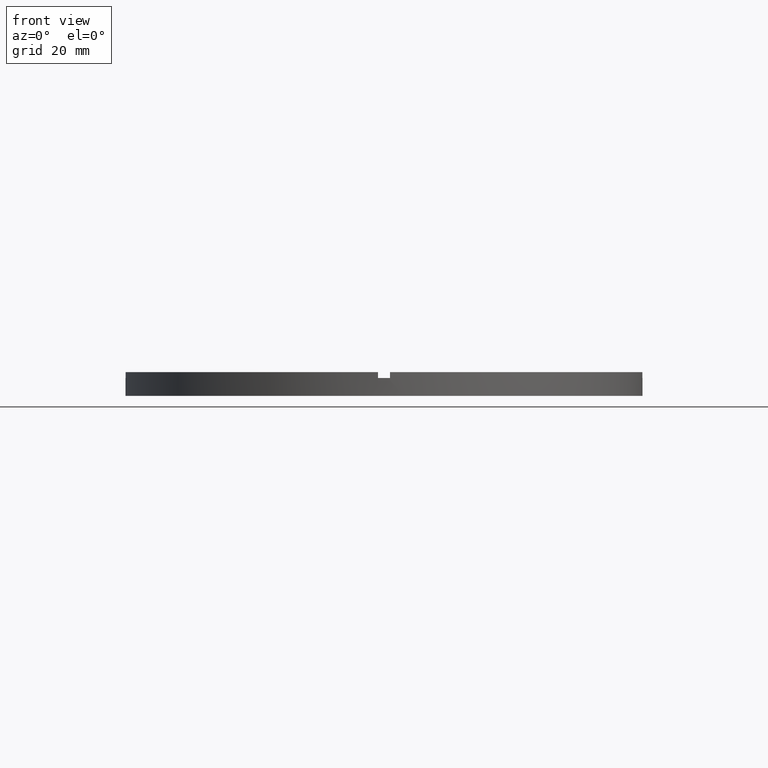
[diagram: clean part render]
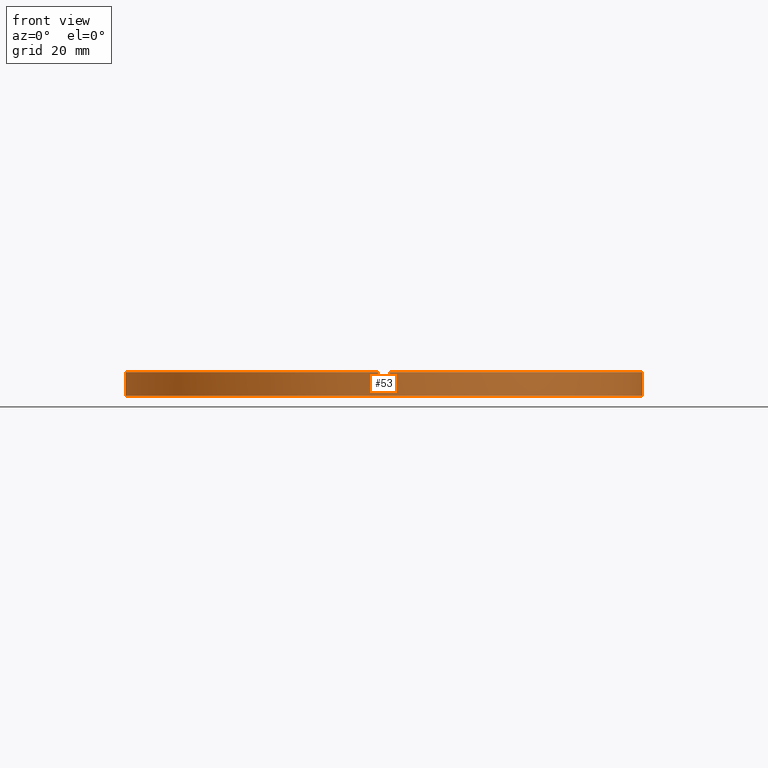
[diagram: same view with one face highlighted and labeled with its STEP entity id]
A machine part, front view. The second image highlights one B-rep face of the part: STEP entity #53.
In plain terms, the highlighted cylindrical surface (partial cylindrical patch) has radius 43.5 mm, axis along (-0, -0, -1).
Its self-contained STEP definition (entity closure, byte-faithful):
#25 = EDGE_CURVE ( 'NONE', #331, #570, #468, .T. ) ;
#26 = CARTESIAN_POINT ( 'NONE',  ( 43.48850422812905947, -1.000000000000156319, 4.000000000000000000 ) ) ;
#28 = LINE ( 'NONE', #451, #541 ) ;
#40 = ORIENTED_EDGE ( 'NONE', *, *, #159, .T. ) ;
#51 = LINE ( 'NONE', #149, #571 ) ;
#53 = ADVANCED_FACE ( 'NONE', ( #198 ), #552, .T. ) ;
#54 = CIRCLE ( 'NONE', #364, 43.50000000000000000 ) ;
#55 = LINE ( 'NONE', #407, #78 ) ;
#60 = LINE ( 'NONE', #462, #598 ) ;
#64 = CARTESIAN_POINT ( 'NONE',  ( -43.50000000000000000, 0.000000000000000000, 0.000000000000000000 ) ) ;
#78 = VECTOR ( 'NONE', #302, 1000.000000000000000 ) ;
#81 = VECTOR ( 'NONE', #674, 1000.000000000000000 ) ;
#83 = LINE ( 'NONE', #26, #81 ) ;
#93 = DIRECTION ( 'NONE',  ( 1.000000000000000000, 0.000000000000000000, 0.000000000000000000 ) ) ;
#108 = CARTESIAN_POINT ( 'NONE',  ( -43.48850422812906658, -1.000000000000029532, 3.000000000000000000 ) ) ;
#119 = EDGE_CURVE ( 'NONE', #681, #736, #51, .T. ) ;
#123 = EDGE_CURVE ( 'NONE', #752, #420, #54, .T. ) ;
#134 = EDGE_CURVE ( 'NONE', #752, #194, #28, .T. ) ;
#149 = CARTESIAN_POINT ( 'NONE',  ( 43.50000000000000000, 5.327213576290986044E-15, 4.000000000000000000 ) ) ;
#150 = CARTESIAN_POINT ( 'NONE',  ( 43.50000000000000000, 5.327213576290986044E-15, 3.000000000000000000 ) ) ;
#157 = VERTEX_POINT ( 'NONE', #411 ) ;
#159 = EDGE_CURVE ( 'NONE', #331, #291, #60, .T. ) ;
#164 = AXIS2_PLACEMENT_3D ( 'NONE', #422, #587, #683 ) ;
#169 = EDGE_CURVE ( 'NONE', #695, #420, #55, .T. ) ;
#176 = ORIENTED_EDGE ( 'NONE', *, *, #123, .F. ) ;
#182 = CIRCLE ( 'NONE', #551, 43.50000000000000000 ) ;
#190 = CARTESIAN_POINT ( 'NONE',  ( -1.000000000000158318, -43.48850422812905947, 3.000000000000000000 ) ) ;
#194 = VERTEX_POINT ( 'NONE', #108 ) ;
#198 = FACE_OUTER_BOUND ( 'NONE', #503, .T. ) ;
#214 = CARTESIAN_POINT ( 'NONE',  ( -43.50000000000000000, 0.000000000000000000, 4.000000000000000000 ) ) ;
#221 = CARTESIAN_POINT ( 'NONE',  ( 0.000000000000000000, 0.000000000000000000, 3.000000000000000000 ) ) ;
#225 = VERTEX_POINT ( 'NONE', #432 ) ;
#245 = ORIENTED_EDGE ( 'NONE', *, *, #574, .T. ) ;
#284 = DIRECTION ( 'NONE',  ( -0.000000000000000000, -0.000000000000000000, -1.000000000000000000 ) ) ;
#287 = CARTESIAN_POINT ( 'NONE',  ( -43.48850422812906658, -1.000000000000029532, 4.000000000000000000 ) ) ;
#291 = VERTEX_POINT ( 'NONE', #322 ) ;
#295 = ORIENTED_EDGE ( 'NONE', *, *, #701, .F. ) ;
#298 = CIRCLE ( 'NONE', #488, 43.50000000000000000 ) ;
#302 = DIRECTION ( 'NONE',  ( 0.000000000000000000, 0.000000000000000000, 1.000000000000000000 ) ) ;
#322 = CARTESIAN_POINT ( 'NONE',  ( 0.9999999999998416822, -43.48850422812906658, 3.000000000000000000 ) ) ;
#331 = VERTEX_POINT ( 'NONE', #718 ) ;
#348 = EDGE_CURVE ( 'NONE', #157, #501, #716, .T. ) ;
#364 = AXIS2_PLACEMENT_3D ( 'NONE', #709, #645, #93 ) ;
#375 = EDGE_CURVE ( 'NONE', #695, #291, #182, .T. ) ;
#389 = CARTESIAN_POINT ( 'NONE',  ( 0.000000000000000000, 0.000000000000000000, 3.000000000000000000 ) ) ;
#390 = DIRECTION ( 'NONE',  ( 0.000000000000000000, 0.000000000000000000, 1.000000000000000000 ) ) ;
#402 = DIRECTION ( 'NONE',  ( 1.000000000000000000, 0.000000000000000000, 0.000000000000000000 ) ) ;
#403 = DIRECTION ( 'NONE',  ( 1.000000000000000000, 0.000000000000000000, 0.000000000000000000 ) ) ;
#407 = CARTESIAN_POINT ( 'NONE',  ( -1.000000000000158318, -43.48850422812905947, 4.000000000000000000 ) ) ;
#411 = CARTESIAN_POINT ( 'NONE',  ( -43.50000000000000000, 0.000000000000000000, 3.000000000000000000 ) ) ;
#419 = EDGE_CURVE ( 'NONE', #225, #681, #298, .T. ) ;
#420 = VERTEX_POINT ( 'NONE', #652 ) ;
#422 = CARTESIAN_POINT ( 'NONE',  ( 0.000000000000000000, 0.000000000000000000, 4.000000000000000000 ) ) ;
#427 = ORIENTED_EDGE ( 'NONE', *, *, #375, .F. ) ;
#429 = DIRECTION ( 'NONE',  ( 1.000000000000000000, 0.000000000000000000, 0.000000000000000000 ) ) ;
#430 = ORIENTED_EDGE ( 'NONE', *, *, #25, .F. ) ;
#432 = CARTESIAN_POINT ( 'NONE',  ( 43.48850422812905947, -1.000000000000156319, 3.000000000000000000 ) ) ;
#447 = AXIS2_PLACEMENT_3D ( 'NONE', #741, #390, #429 ) ;
#450 = CARTESIAN_POINT ( 'NONE',  ( 0.000000000000000000, 0.000000000000000000, 3.000000000000000000 ) ) ;
#451 = CARTESIAN_POINT ( 'NONE',  ( -43.48850422812906658, -1.000000000000029532, 4.000000000000000000 ) ) ;
#457 = VECTOR ( 'NONE', #284, 1000.000000000000000 ) ;
#462 = CARTESIAN_POINT ( 'NONE',  ( 0.9999999999998416822, -43.48850422812906658, 4.000000000000000000 ) ) ;
#468 = CIRCLE ( 'NONE', #485, 43.50000000000000000 ) ;
#469 = ORIENTED_EDGE ( 'NONE', *, *, #348, .T. ) ;
#481 = ORIENTED_EDGE ( 'NONE', *, *, #169, .T. ) ;
#485 = AXIS2_PLACEMENT_3D ( 'NONE', #734, #597, #639 ) ;
#488 = AXIS2_PLACEMENT_3D ( 'NONE', #450, #658, #403 ) ;
#501 = VERTEX_POINT ( 'NONE', #64 ) ;
#503 = EDGE_LOOP ( 'NONE', ( #717, #763, #539, #430, #40, #427, #481, #176, #711, #295, #469, #245 ) ) ;
#530 = DIRECTION ( 'NONE',  ( -0.000000000000000000, -0.000000000000000000, -1.000000000000000000 ) ) ;
#539 = ORIENTED_EDGE ( 'NONE', *, *, #654, .T. ) ;
#541 = VECTOR ( 'NONE', #772, 1000.000000000000000 ) ;
#545 = CIRCLE ( 'NONE', #447, 43.50000000000000000 ) ;
#551 = AXIS2_PLACEMENT_3D ( 'NONE', #221, #627, #715 ) ;
#552 = CYLINDRICAL_SURFACE ( 'NONE', #164, 43.50000000000000000 ) ;
#570 = VERTEX_POINT ( 'NONE', #656 ) ;
#571 = VECTOR ( 'NONE', #530, 1000.000000000000000 ) ;
#574 = EDGE_CURVE ( 'NONE', #501, #736, #545, .T. ) ;
#587 = DIRECTION ( 'NONE',  ( -0.000000000000000000, -0.000000000000000000, -1.000000000000000000 ) ) ;
#591 = CIRCLE ( 'NONE', #699, 43.50000000000000000 ) ;
#597 = DIRECTION ( 'NONE',  ( 0.000000000000000000, 0.000000000000000000, 1.000000000000000000 ) ) ;
#598 = VECTOR ( 'NONE', #625, 1000.000000000000000 ) ;
#625 = DIRECTION ( 'NONE',  ( -0.000000000000000000, -0.000000000000000000, -1.000000000000000000 ) ) ;
#627 = DIRECTION ( 'NONE',  ( -0.000000000000000000, 0.000000000000000000, 1.000000000000000000 ) ) ;
#639 = DIRECTION ( 'NONE',  ( 1.000000000000000000, 0.000000000000000000, 0.000000000000000000 ) ) ;
#645 = DIRECTION ( 'NONE',  ( 0.000000000000000000, 0.000000000000000000, 1.000000000000000000 ) ) ;
#652 = CARTESIAN_POINT ( 'NONE',  ( -1.000000000000158318, -43.48850422812905947, 4.000000000000000000 ) ) ;
#654 = EDGE_CURVE ( 'NONE', #225, #570, #83, .T. ) ;
#656 = CARTESIAN_POINT ( 'NONE',  ( 43.48850422812905947, -1.000000000000156319, 4.000000000000000000 ) ) ;
#658 = DIRECTION ( 'NONE',  ( 0.000000000000000000, 0.000000000000000000, 1.000000000000000000 ) ) ;
#674 = DIRECTION ( 'NONE',  ( 0.000000000000000000, 0.000000000000000000, 1.000000000000000000 ) ) ;
#681 = VERTEX_POINT ( 'NONE', #150 ) ;
#683 = DIRECTION ( 'NONE',  ( -1.000000000000000000, 0.000000000000000000, 0.000000000000000000 ) ) ;
#690 = DIRECTION ( 'NONE',  ( 0.000000000000000000, 0.000000000000000000, 1.000000000000000000 ) ) ;
#695 = VERTEX_POINT ( 'NONE', #190 ) ;
#699 = AXIS2_PLACEMENT_3D ( 'NONE', #389, #690, #402 ) ;
#701 = EDGE_CURVE ( 'NONE', #157, #194, #591, .T. ) ;
#709 = CARTESIAN_POINT ( 'NONE',  ( 0.000000000000000000, 0.000000000000000000, 4.000000000000000000 ) ) ;
#711 = ORIENTED_EDGE ( 'NONE', *, *, #134, .T. ) ;
#715 = DIRECTION ( 'NONE',  ( 1.000000000000000000, 0.000000000000000000, 0.000000000000000000 ) ) ;
#716 = LINE ( 'NONE', #214, #457 ) ;
#717 = ORIENTED_EDGE ( 'NONE', *, *, #119, .F. ) ;
#718 = CARTESIAN_POINT ( 'NONE',  ( 0.9999999999998416822, -43.48850422812906658, 4.000000000000000000 ) ) ;
#734 = CARTESIAN_POINT ( 'NONE',  ( 0.000000000000000000, 0.000000000000000000, 4.000000000000000000 ) ) ;
#736 = VERTEX_POINT ( 'NONE', #751 ) ;
#741 = CARTESIAN_POINT ( 'NONE',  ( 0.000000000000000000, 0.000000000000000000, 0.000000000000000000 ) ) ;
#751 = CARTESIAN_POINT ( 'NONE',  ( 43.50000000000000000, 5.327213576290986044E-15, 0.000000000000000000 ) ) ;
#752 = VERTEX_POINT ( 'NONE', #287 ) ;
#763 = ORIENTED_EDGE ( 'NONE', *, *, #419, .F. ) ;
#772 = DIRECTION ( 'NONE',  ( -0.000000000000000000, -0.000000000000000000, -1.000000000000000000 ) ) ;